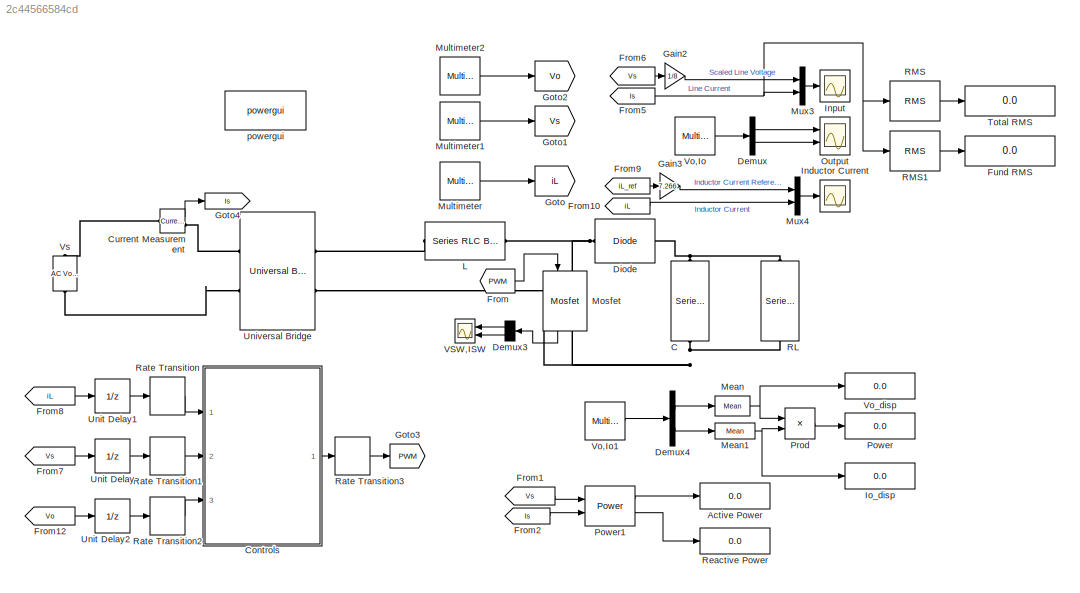
MODEL slx_2c44566584cd
KIND model
CONFIG AbsTol = auto
CONFIG EnableMultiTasking = off
CONFIG FixedStep = auto
CONFIG MaxStep = auto
CONFIG MinStep = auto
CONFIG RelTol = 1e-3
CONFIG SampleTimeConstraint = Unconstrained
CONFIG SolverName = VariableStepAuto
CONFIG StartTime = 0.0
CONFIG StopTime = 0.5
BLOCK [Display] Active Power
  Decimation = 1
  Ports = [1]
BLOCK [Reference] C  REF=powerlib/Elements/Series RLC Branch
  NameLocation = left
  Ports = [0, 0, 0, 0, 0, 1, 1]
  SourceBlock = powerlib/Elements/Series RLC Branch
  SourceProductBaseCode = PS
  SourceType = Series RLC Branch
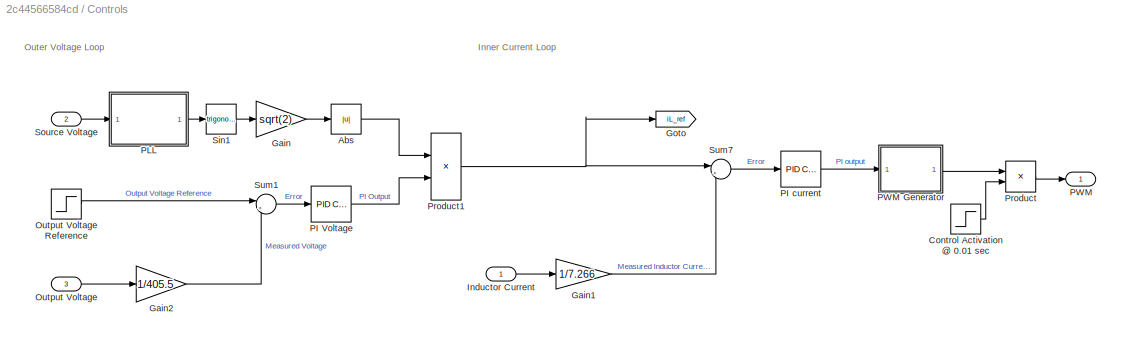
BLOCK [SubSystem] Controls
  Ports = [3, 1]
  RequestExecContextInheritance = off
BLOCK [Abs] Controls/Abs
  SaturateOnIntegerOverflow = off
BLOCK [Step] Controls/Control Activation @ 0.01 sec
  SampleTime = 2e-7
  Time = 0.01
BLOCK [Gain] Controls/Gain
  Gain = sqrt(2)
BLOCK [Gain] Controls/Gain1
  Gain = 1/7.266
BLOCK [Gain] Controls/Gain2
  Gain = 1/405.5
BLOCK [Goto] Controls/Goto
  GotoTag = iL_ref
  TagVisibility = global
BLOCK [Inport] Controls/Inductor Current
BLOCK [Inport] Controls/Output Voltage
  Port = 3
BLOCK [Step] Controls/Output Voltage Reference
  After = 1.3
  Before = 1
  SampleTime = 2e-7
  Time = 1.5
BLOCK [Reference] Controls/PI Voltage  REF=pid_lib/PID Controller
  Ports = [1, 1]
  SourceBlock = pid_lib/PID Controller
  SourceProductBaseCode = SL
  SourceType = PID 1dof
BLOCK [Reference] Controls/PI current  REF=pid_lib/PID Controller
  Ports = [1, 1]
  SourceBlock = pid_lib/PID Controller
  SourceProductBaseCode = SL
  SourceType = PID 1dof
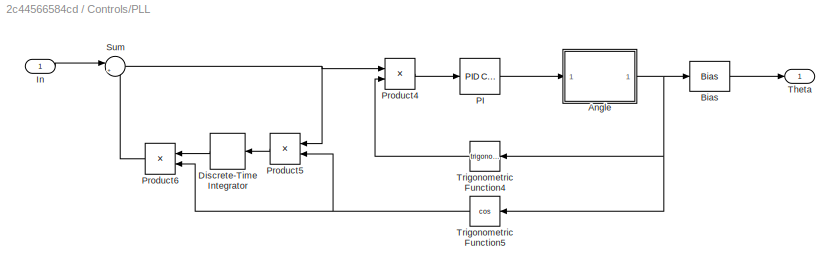
BLOCK [SubSystem] Controls/PLL
  Ports = [1, 1]
  RequestExecContextInheritance = off
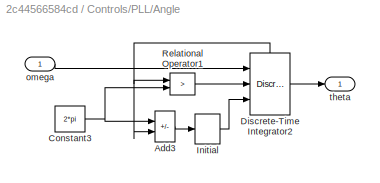
BLOCK [SubSystem] Controls/PLL/Angle
  Ports = [1, 1]
  RequestExecContextInheritance = off
BLOCK [Sum] Controls/PLL/Angle/Add3
  IconShape = rectangular
  Inputs = -+
  NameLocation = top
  Ports = [2, 1]
BLOCK [Constant] Controls/PLL/Angle/Constant3
  Value = 2*pi
BLOCK [DiscreteIntegrator] Controls/PLL/Angle/Discrete-Time Integrator2
  ExternalReset = rising
  ICPrevOutput = DiscIntNeverNeededParam
  ICPrevScaledInput = DiscIntNeverNeededParam
  InitialConditionSetting = Auto
  InitialConditionSource = external
  Ports = [3, 1, 0, 0, 1]
  SampleTime = -1
  ShowStatePort = on
BLOCK [InitialCondition] Controls/PLL/Angle/Initial
  Value = 0
BLOCK [RelationalOperator] Controls/PLL/Angle/Relational Operator1
  InputSameDT = off
  Operator = >
  OutDataTypeStr = boolean
  Ports = [2, 1]
BLOCK [Inport] Controls/PLL/Angle/omega
BLOCK [Outport] Controls/PLL/Angle/theta
  VectorParamsAs1DForOutWhenUnconnected = off
BLOCK [Bias] Controls/PLL/Bias
  Bias = -pi/2
  SaturateOnIntegerOverflow = off
BLOCK [DiscreteIntegrator] Controls/PLL/Discrete-Time Integrator
  ICPrevOutput = DiscIntNeverNeededParam
  ICPrevScaledInput = DiscIntNeverNeededParam
  InitialConditionSetting = Auto
  Ports = [1, 1]
  SampleTime = -1
  gainval = 100*2
BLOCK [Inport] Controls/PLL/In
BLOCK [Reference] Controls/PLL/PI  REF=pid_lib/PID Controller
  Ports = [1, 1]
  SourceBlock = pid_lib/PID Controller
  SourceProductBaseCode = SL
  SourceType = PID 1dof
BLOCK [Product] Controls/PLL/Product4
  Ports = [2, 1]
BLOCK [Product] Controls/PLL/Product5
  NameLocation = top
  Ports = [2, 1]
BLOCK [Product] Controls/PLL/Product6
  NameLocation = top
  Ports = [2, 1]
BLOCK [Sum] Controls/PLL/Sum
  Inputs = |+-
  Ports = [2, 1]
BLOCK [Outport] Controls/PLL/Theta
  VectorParamsAs1DForOutWhenUnconnected = off
BLOCK [Trigonometry] Controls/PLL/Trigonometric Function4
  NameLocation = top
  Ports = [1, 1]
BLOCK [Trigonometry] Controls/PLL/Trigonometric Function5
  NameLocation = top
  Operator = cos
  Ports = [1, 1]
BLOCK [Outport] Controls/PWM
  VectorParamsAs1DForOutWhenUnconnected = off
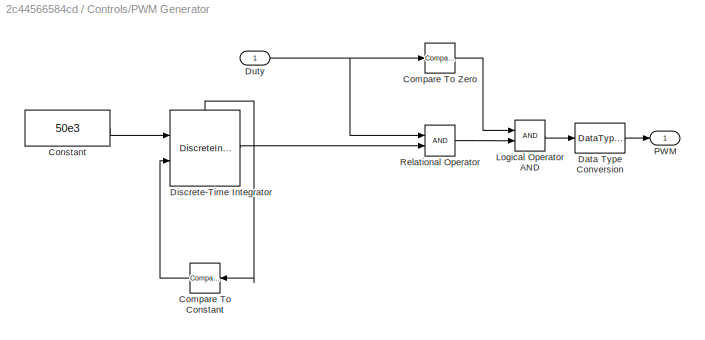
BLOCK [SubSystem] Controls/PWM Generator
  Ports = [1, 1]
  RequestExecContextInheritance = off
BLOCK [Reference] Controls/PWM Generator/Compare To Constant  REF=simulink/Logic and Bit
Operations/Compare
To Constant
  NameLocation = top
  Ports = [1, 1]
  SourceBlock = simulink/Logic and Bit\nOperations/Compare\nTo Constant
  SourceProductBaseCode = SL
  SourceType = Compare To Constant
BLOCK [Reference] Controls/PWM Generator/Compare To Zero  REF=simulink/Logic and Bit
Operations/Compare
To Zero
  Ports = [1, 1]
  SourceBlock = simulink/Logic and Bit\nOperations/Compare\nTo Zero
  SourceProductBaseCode = SL
  SourceType = Compare To Zero
BLOCK [Constant] Controls/PWM Generator/Constant
  SampleTime = 2e-7
  Value = 50e3
BLOCK [DataTypeConversion] Controls/PWM Generator/Data Type Conversion
  OutDataTypeStr = double
  RndMeth = Floor
  SaturateOnIntegerOverflow = off
BLOCK [DiscreteIntegrator] Controls/PWM Generator/Discrete-Time Integrator
  ExternalReset = rising
  ICPrevOutput = DiscIntNeverNeededParam
  ICPrevScaledInput = DiscIntNeverNeededParam
  InitialConditionSetting = Auto
  Ports = [2, 1, 0, 0, 1]
  SampleTime = -1
  ShowStatePort = on
BLOCK [Inport] Controls/PWM Generator/Duty
BLOCK [Logic] Controls/PWM Generator/Logical Operator AND
  AllPortsSameDT = off
  OutDataTypeStr = boolean
  Ports = [2, 1]
BLOCK [Outport] Controls/PWM Generator/PWM
  NameLocation = top
  VectorParamsAs1DForOutWhenUnconnected = off
BLOCK [RelationalOperator] Controls/PWM Generator/Relational Operator
  InputSameDT = off
  OutDataTypeStr = boolean
  Ports = [2, 1]
BLOCK [Product] Controls/Product
  Ports = [2, 1]
BLOCK [Product] Controls/Product1
  Ports = [2, 1]
BLOCK [Trigonometry] Controls/Sin1
  Ports = [1, 1]
BLOCK [Inport] Controls/Source Voltage
  Port = 2
BLOCK [Sum] Controls/Sum1
  Inputs = |+-
  Ports = [2, 1]
BLOCK [Sum] Controls/Sum7
  Inputs = |+-
  Ports = [2, 1]
BLOCK [Reference] Current Measurement  REF=powerlib/Measurements/Current Measurement
  Ports = [0, 1, 0, 0, 0, 1, 1]
  SourceBlock = powerlib/Measurements/Current Measurement
  SourceProductBaseCode = PS
  SourceType = Current Measurement
  UserDataPersistent = on
BLOCK [Demux] Demux
  Outputs = 2
  Ports = [1, 2]
BLOCK [Demux] Demux3
  Outputs = 2
  Ports = [1, 2]
BLOCK [Demux] Demux4
  Outputs = 2
  Ports = [1, 2]
BLOCK [Reference] Diode   REF=powerlib/Power
Electronics/Diode
  Ports = [0, 0, 0, 0, 0, 1, 1]
  SourceBlock = powerlib/Power\nElectronics/Diode
  SourceProductBaseCode = PS
  SourceType = Diode
BLOCK [From] From
  GotoTag = PWM
BLOCK [From] From1
  GotoTag = Vs
BLOCK [From] From10
  GotoTag = iL
BLOCK [From] From12
  GotoTag = Vo
BLOCK [From] From2
  GotoTag = Is
BLOCK [From] From5
  GotoTag = Is
BLOCK [From] From6
  GotoTag = Vs
BLOCK [From] From7
  GotoTag = Vs
BLOCK [From] From8
  GotoTag = iL
BLOCK [From] From9
  GotoTag = iL_ref
  TagVisibility = global
BLOCK [Display] Fund RMS
  Decimation = 1
  Ports = [1]
BLOCK [Gain] Gain2
  Gain = 1/8
BLOCK [Gain] Gain3
  Gain = 7.266
BLOCK [Goto] Goto
  GotoTag = iL
BLOCK [Goto] Goto1
  GotoTag = Vs
BLOCK [Goto] Goto2
  GotoTag = Vo
BLOCK [Goto] Goto3
  GotoTag = PWM
BLOCK [Goto] Goto4
  GotoTag = Is
BLOCK [Scope] Inductor Current
  Floating = off
  NumInputPorts = 1
  Ports = [1]
  ScopeSpecificationString = Simulink.scopes.TimeScopeBlockCfg('CurrentConfiguration', extmgr.ConfigurationSet(extmgr.Configuration('Core','General UI',true,'FigureColor',[1 1 1]),extmgr.Configuration('Core','Source UI',true),extmgr.Configuration('Sources','WiredSimulink',true,'DataLoggingVariableName','ScopeData3'),extmgr.Configuration('Visuals','Time Domain',true,'SerializedDisplays',{struct('MinYLimReal','9.91388','MaxYLim...<+2730ch>
BLOCK [Scope] Input
  Floating = off
  NumInputPorts = 1
  Ports = [1]
  ScopeSpecificationString = Simulink.scopes.TimeScopeBlockCfg('CurrentConfiguration', extmgr.ConfigurationSet(extmgr.Configuration('Core','General UI',true,'FigureColor',[1 1 1]),extmgr.Configuration('Core','Source UI',true),extmgr.Configuration('Sources','WiredSimulink',true,'DataLoggingVariableName','Input_VI','DataLogging',true,'DataLoggingSaveFormat','StructureWithTime'),extmgr.Configuration('Visuals','Time Domain',true,...<+2431ch>
BLOCK [Display] Io_disp
  Decimation = 1
  Ports = [1]
BLOCK [Reference] L  REF=powerlib/Elements/Series RLC Branch
  Ports = [0, 0, 0, 0, 0, 1, 1]
  SourceBlock = powerlib/Elements/Series RLC Branch
  SourceProductBaseCode = PS
  SourceType = Series RLC Branch
BLOCK [Reference] Mean  REF=powerlib_meascontrol/Measurements/Mean
  Ports = [1, 1]
  SourceBlock = powerlib_meascontrol/Measurements/Mean
  SourceProductBaseCode = PS
  SourceType = Mean
BLOCK [Reference] Mean1  REF=powerlib_meascontrol/Measurements/Mean
  Ports = [1, 1]
  SourceBlock = powerlib_meascontrol/Measurements/Mean
  SourceProductBaseCode = PS
  SourceType = Mean
BLOCK [Reference] Mosfet  REF=powerlib/Power
Electronics/Mosfet
  NameLocation = left
  Ports = [1, 1, 0, 0, 0, 1, 1]
  SourceBlock = powerlib/Power\nElectronics/Mosfet
  SourceProductBaseCode = PS
  SourceType = Mosfet
BLOCK [Reference] Multimeter  REF=powerlib/Measurements/Multimeter
  Ports = [0, 1]
  SourceBlock = powerlib/Measurements/Multimeter
  SourceProductBaseCode = PS
  SourceType = MultimeterPSB
BLOCK [Reference] Multimeter1  REF=powerlib/Measurements/Multimeter
  Ports = [0, 1]
  SourceBlock = powerlib/Measurements/Multimeter
  SourceProductBaseCode = PS
  SourceType = MultimeterPSB
BLOCK [Reference] Multimeter2  REF=powerlib/Measurements/Multimeter
  Ports = [0, 1]
  SourceBlock = powerlib/Measurements/Multimeter
  SourceProductBaseCode = PS
  SourceType = MultimeterPSB
BLOCK [Mux] Mux3
  DisplayOption = bar
  Inputs = 2
  Ports = [2, 1]
BLOCK [Mux] Mux4
  DisplayOption = bar
  Inputs = 2
  Ports = [2, 1]
BLOCK [Scope] Output
  Floating = off
  NumInputPorts = 2
  Ports = [2]
  ScopeSpecificationString = Simulink.scopes.TimeScopeBlockCfg('CurrentConfiguration', extmgr.ConfigurationSet(extmgr.Configuration('Core','General UI',true,'FigureColor',[1 1 1]),extmgr.Configuration('Core','Source UI',true),extmgr.Configuration('Sources','WiredSimulink',true,'DataLoggingVariableName','ScopeData2'),extmgr.Configuration('Visuals','Time Domain',true,'TimeAxisLabels','All','SerializedDisplays',{struct('MinYLimR...<+3458ch>
BLOCK [Display] Power
  Decimation = 1
  Ports = [1]
BLOCK [Reference] Power1  REF=powerlib_meascontrol/Measurements/Power
  Ports = [2, 2]
  SourceBlock = powerlib_meascontrol/Measurements/Power
  SourceProductBaseCode = PS
  SourceType = Power
BLOCK [Product] Prod
  Ports = [2, 1]
BLOCK [Reference] RL  REF=powerlib/Elements/Series RLC Branch
  NameLocation = left
  Ports = [0, 0, 0, 0, 0, 1, 1]
  SourceBlock = powerlib/Elements/Series RLC Branch
  SourceProductBaseCode = PS
  SourceType = Series RLC Branch
BLOCK [Reference] RMS  REF=powerlib_meascontrol/Measurements/RMS
  Ports = [1, 1]
  SourceBlock = powerlib_meascontrol/Measurements/RMS
  SourceProductBaseCode = PS
  SourceType = RMS
BLOCK [Reference] RMS1  REF=powerlib_meascontrol/Measurements/RMS
  Ports = [1, 1]
  SourceBlock = powerlib_meascontrol/Measurements/RMS
  SourceProductBaseCode = PS
  SourceType = RMS
BLOCK [RateTransition] Rate Transition
  OutPortSampleTime = 2e-7
BLOCK [RateTransition] Rate Transition1
  OutPortSampleTime = 2e-7
BLOCK [RateTransition] Rate Transition2
  OutPortSampleTime = 2e-7
BLOCK [RateTransition] Rate Transition3
  OutPortSampleTime = 2e-7
BLOCK [Display] Reactive Power
  Decimation = 1
  Ports = [1]
BLOCK [Display] Total RMS
  Decimation = 1
  Ports = [1]
BLOCK [UnitDelay] Unit Delay
  HasFrameUpgradeWarning = on
  SampleTime = -1
BLOCK [UnitDelay] Unit Delay1
  HasFrameUpgradeWarning = on
  SampleTime = -1
BLOCK [UnitDelay] Unit Delay2
  HasFrameUpgradeWarning = on
  SampleTime = -1
BLOCK [Reference] Universal Bridge  REF=powerlib/Power
Electronics/Universal Bridge
  Ports = [0, 0, 0, 0, 0, 2, 2]
  SourceBlock = powerlib/Power\nElectronics/Universal Bridge
  SourceProductBaseCode = PS
  SourceType = Universal Bridge
BLOCK [Scope] VSW,ISW
  Floating = off
  NumInputPorts = 2
  Ports = [2]
  ScopeSpecificationString = Simulink.scopes.TimeScopeBlockCfg('CurrentConfiguration', extmgr.ConfigurationSet(extmgr.Configuration('Core','General UI',true,'FigureColor',[1 1 1]),extmgr.Configuration('Core','Source UI',true),extmgr.Configuration('Sources','WiredSimulink',true),extmgr.Configuration('Visuals','Time Domain',true,'TimeAxisLabels','All','SerializedDisplays',{struct('MinYLimReal','-1.42788','MaxYLimReal','12.85096...<+3060ch>
BLOCK [Reference] Vo,Io  REF=powerlib/Measurements/Multimeter
  Ports = [0, 1]
  SourceBlock = powerlib/Measurements/Multimeter
  SourceProductBaseCode = PS
  SourceType = MultimeterPSB
BLOCK [Reference] Vo,Io1  REF=powerlib/Measurements/Multimeter
  Ports = [0, 1]
  SourceBlock = powerlib/Measurements/Multimeter
  SourceProductBaseCode = PS
  SourceType = MultimeterPSB
BLOCK [Display] Vo_disp
  Decimation = 1
  Ports = [1]
BLOCK [Reference] Vs  REF=powerlib/Electrical
Sources/AC Voltage Source
  NameLocation = right
  Ports = [0, 0, 0, 0, 0, 1, 1]
  SourceBlock = powerlib/Electrical\nSources/AC Voltage Source
  SourceProductBaseCode = PS
  SourceType = AC Voltage Source
BLOCK [Reference] powergui  REF=powerlib/powergui
  Ports = []
  Priority = 1
  SourceBlock = powerlib/powergui
  SourceProductBaseCode = PS
  SourceType = PSB option menu block
ANNOTATION Controls: Inner Current Loop
ANNOTATION Controls: Outer Voltage Loop
LINE Controls/Abs:1 -> Controls/Product1:1
LINE Controls/Control Activation @ 0.01 sec:1 -> Controls/Product:2
LINE Controls/Gain1:1 -> Controls/Sum7:2
LINE Controls/Gain2:1 -> Controls/Sum1:2
LINE Controls/Gain:1 -> Controls/Abs:1
LINE Controls/Inductor Current:1 -> Controls/Gain1:1
LINE Controls/Output Voltage Reference:1 -> Controls/Sum1:1
LINE Controls/Output Voltage:1 -> Controls/Gain2:1
LINE Controls/PI Voltage:1 -> Controls/Product1:2
LINE Controls/PI current:1 -> Controls/PWM Generator:1
LINE Controls/PLL/Angle/Add3:1 -> Controls/PLL/Angle/Initial:1
NET Controls/PLL/Angle/Constant3:1 -> Controls/PLL/Angle/Add3:1, Controls/PLL/Angle/Relational Operator1:2
LINE Controls/PLL/Angle/Discrete-Time Integrator2:1 -> Controls/PLL/Angle/theta:1
NET Controls/PLL/Angle/Discrete-Time Integrator2:state -> Controls/PLL/Angle/Add3:2, Controls/PLL/Angle/Relational Operator1:1
LINE Controls/PLL/Angle/Initial:1 -> Controls/PLL/Angle/Discrete-Time Integrator2:3
LINE Controls/PLL/Angle/Relational Operator1:1 -> Controls/PLL/Angle/Discrete-Time Integrator2:2
LINE Controls/PLL/Angle/omega:1 -> Controls/PLL/Angle/Discrete-Time Integrator2:1
NET Controls/PLL/Angle:1 -> Controls/PLL/Bias:1, Controls/PLL/Trigonometric Function4:1, Controls/PLL/Trigonometric Function5:1
LINE Controls/PLL/Bias:1 -> Controls/PLL/Theta:1
LINE Controls/PLL/Discrete-Time Integrator:1 -> Controls/PLL/Product6:1
LINE Controls/PLL/In:1 -> Controls/PLL/Sum:1
LINE Controls/PLL/PI:1 -> Controls/PLL/Angle:1
LINE Controls/PLL/Product4:1 -> Controls/PLL/PI:1
LINE Controls/PLL/Product5:1 -> Controls/PLL/Discrete-Time Integrator:1
LINE Controls/PLL/Product6:1 -> Controls/PLL/Sum:2
NET Controls/PLL/Sum:1 -> Controls/PLL/Product4:1, Controls/PLL/Product5:1
LINE Controls/PLL/Trigonometric Function4:1 -> Controls/PLL/Product4:2
NET Controls/PLL/Trigonometric Function5:1 -> Controls/PLL/Product5:2, Controls/PLL/Product6:2
LINE Controls/PLL:1 -> Controls/Sin1:1
LINE Controls/PWM Generator/Compare To Constant:1 -> Controls/PWM Generator/Discrete-Time Integrator:2
LINE Controls/PWM Generator/Compare To Zero:1 -> Controls/PWM Generator/Logical Operator AND:1
LINE Controls/PWM Generator/Constant:1 -> Controls/PWM Generator/Discrete-Time Integrator:1
LINE Controls/PWM Generator/Data Type Conversion:1 -> Controls/PWM Generator/PWM:1
LINE Controls/PWM Generator/Discrete-Time Integrator:1 -> Controls/PWM Generator/Relational Operator:2
LINE Controls/PWM Generator/Discrete-Time Integrator:state -> Controls/PWM Generator/Compare To Constant:1
NET Controls/PWM Generator/Duty:1 -> Controls/PWM Generator/Compare To Zero:1, Controls/PWM Generator/Relational Operator:1
LINE Controls/PWM Generator/Logical Operator AND:1 -> Controls/PWM Generator/Data Type Conversion:1
LINE Controls/PWM Generator/Relational Operator:1 -> Controls/PWM Generator/Logical Operator AND:2
LINE Controls/PWM Generator:1 -> Controls/Product:1
NET Controls/Product1:1 -> Controls/Goto:1, Controls/Sum7:1
LINE Controls/Product:1 -> Controls/PWM:1
LINE Controls/Sin1:1 -> Controls/Gain:1
LINE Controls/Source Voltage:1 -> Controls/PLL:1
LINE Controls/Sum1:1 -> Controls/PI Voltage:1
LINE Controls/Sum7:1 -> Controls/PI current:1
LINE Controls:1 -> Rate Transition3:1
LINE Current Measurement:1 -> Goto4:1
LINE Demux3:1 -> VSW,ISW:1
LINE Demux3:2 -> VSW,ISW:2
LINE Demux4:1 -> Mean:1
LINE Demux4:2 -> Mean1:1
LINE Demux:1 -> Output:1
LINE Demux:2 -> Output:2
LINE From10:1 -> Mux4:2
LINE From12:1 -> Unit Delay2:1
LINE From1:1 -> Power1:1
LINE From2:1 -> Power1:2
NET From5:1 -> Mux3:2, RMS1:1, RMS:1
LINE From6:1 -> Gain2:1
LINE From7:1 -> Unit Delay:1
LINE From8:1 -> Unit Delay1:1
LINE From9:1 -> Gain3:1
LINE From:1 -> Mosfet:1
LINE Gain2:1 -> Mux3:1
LINE Gain3:1 -> Mux4:1
NET Mean1:1 -> Io_disp:1, Prod:2
NET Mean:1 -> Prod:1, Vo_disp:1
LINE Mosfet:1 -> Demux3:1
LINE Multimeter1:1 -> Goto1:1
LINE Multimeter2:1 -> Goto2:1
LINE Multimeter:1 -> Goto:1
LINE Mux3:1 -> Input:1
LINE Mux4:1 -> Inductor Current:1
LINE Power1:1 -> Active Power:1
LINE Power1:2 -> Reactive Power:1
LINE Prod:1 -> Power:1
LINE RMS1:1 -> Fund RMS:1
LINE RMS:1 -> Total RMS:1
LINE Rate Transition1:1 -> Controls:2
LINE Rate Transition2:1 -> Controls:3
LINE Rate Transition3:1 -> Goto3:1
LINE Rate Transition:1 -> Controls:1
LINE Unit Delay1:1 -> Rate Transition:1
LINE Unit Delay2:1 -> Rate Transition2:1
LINE Unit Delay:1 -> Rate Transition1:1
LINE Vo,Io1:1 -> Demux4:1
LINE Vo,Io:1 -> Demux:1
PNET net1: C:LConn1 -- Diode :RConn1 -- RL:LConn1
PNET net2: C:RConn1 -- Mosfet:RConn1 -- RL:RConn1 -- Universal Bridge:RConn2
PLINE Current Measurement:LConn1 -- Vs:RConn1
PLINE Current Measurement:RConn1 -- Universal Bridge:LConn1
PNET net3: Diode :LConn1 -- L:RConn1 -- Mosfet:LConn1
PLINE L:LConn1 -- Universal Bridge:RConn1
PLINE Universal Bridge:LConn2 -- Vs:LConn1
note: NET lines group one-source signal fan-out (src -> all destinations, sorted); 1:1 wires keep LINE; PNET lines group multi-terminal physical nets as a canonical sorted terminal list (undirected conserving connections); 2-terminal nets keep the pairwise PLINE form
